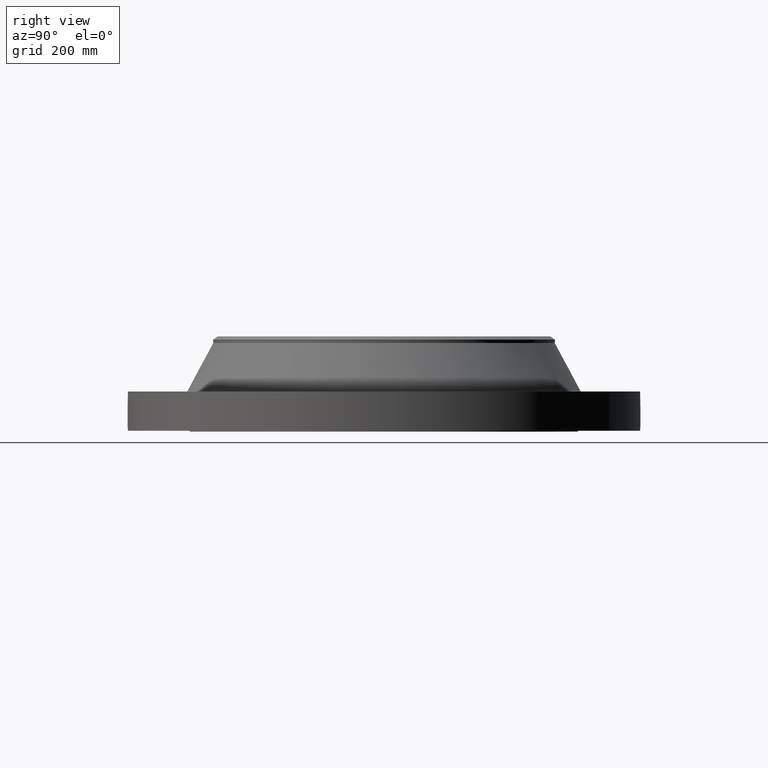
[diagram: clean part render]
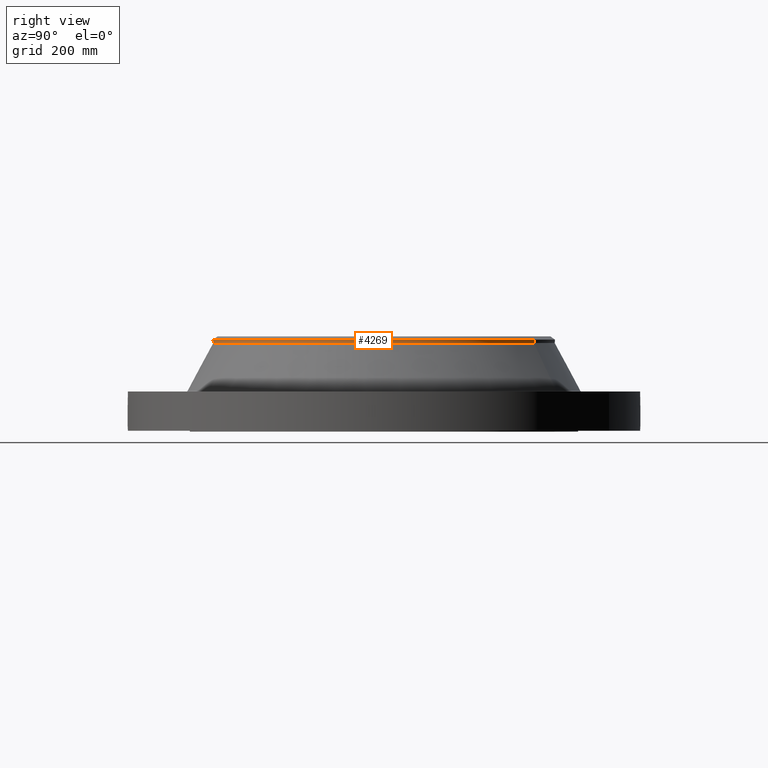
[diagram: same view with one face highlighted and labeled with its STEP entity id]
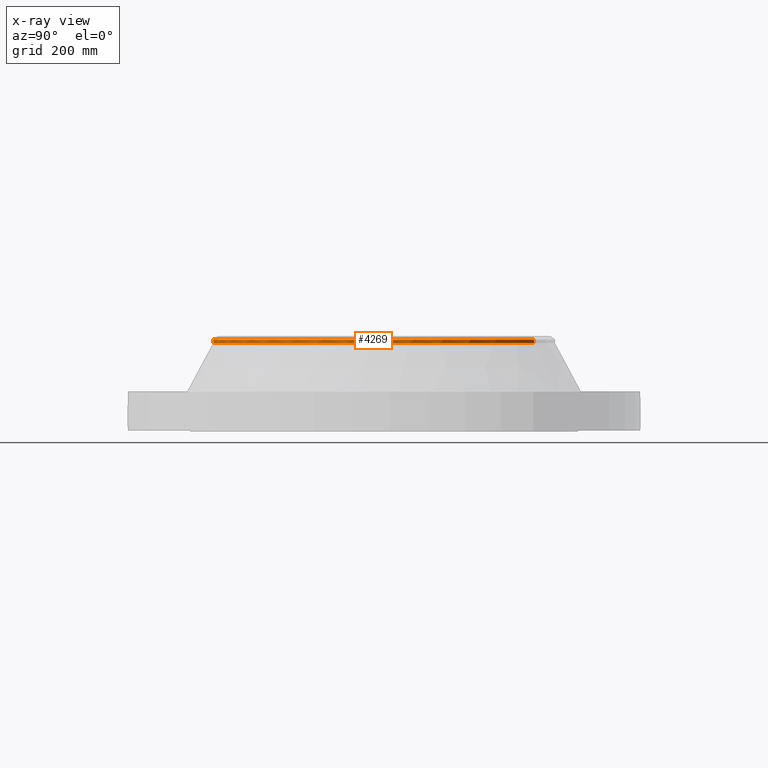
[diagram: x-ray of the same camera — body ghosted, the highlighted face saturated]
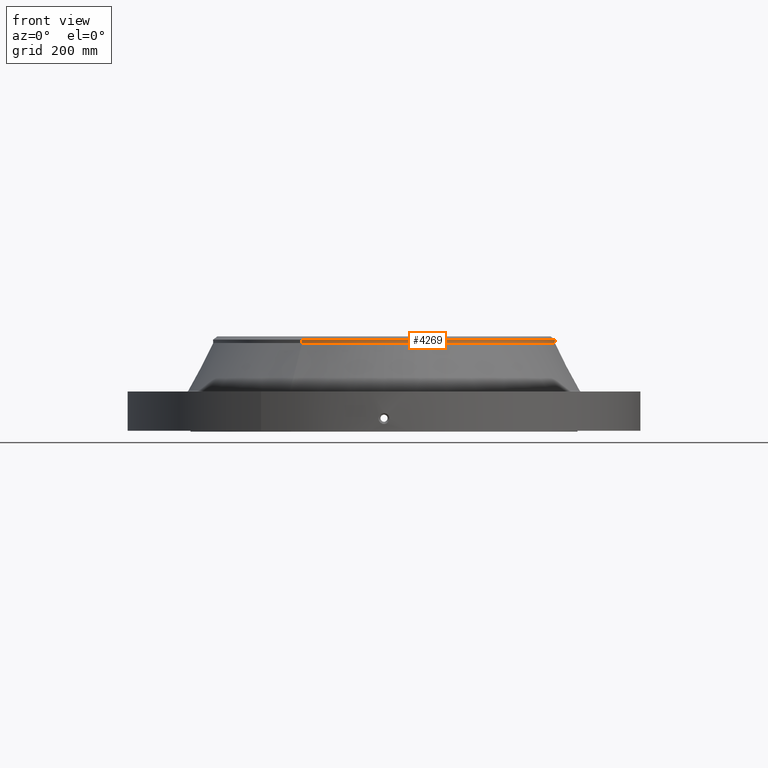
[diagram: same view with one face highlighted and labeled with its STEP entity id]
A machine part, right view. The second image highlights one B-rep face of the part: STEP entity #4269.
The next image is the same camera in x-ray: the body ghosted, the highlighted face saturated — about 0% of this face is hidden behind the body in this view.
A second angle (front view) of the same face is appended — the face is thin or edge-on in the first view.
In plain terms, the highlighted cylindrical surface (partial cylindrical patch) has radius 304.8 mm, axis along (0, 0, -1).
Its self-contained STEP definition (entity closure, byte-faithful):
#3437=AXIS2_PLACEMENT_3D('Circle Axis2P3D',#3435,#3436,$) ;
#4234=AXIS2_PLACEMENT_3D('Cylinder Axis2P3D',#4231,#4232,#4233) ;
#4252=AXIS2_PLACEMENT_3D('Circle Axis2P3D',#4250,#4251,$) ;
#4259=AXIS2_PLACEMENT_3D('Circle Axis2P3D',#4257,#4258,$) ;
#3432=CARTESIAN_POINT('Vertex',(5.75310646327,10.5309907427,6.21645135496)) ;
#3435=CARTESIAN_POINT('Axis2P3D Location',(0.,0.,6.21645135496)) ;
#3439=CARTESIAN_POINT('Vertex',(-5.75310646327,-10.5309907427,6.21645135496)) ;
#4231=CARTESIAN_POINT('Axis2P3D Location',(0.,0.,3.34000000001)) ;
#4236=CARTESIAN_POINT('Line Origine',(-5.75310646327,-10.5309907427,6.33456159119)) ;
#4240=CARTESIAN_POINT('Vertex',(-5.75310646327,-10.5309907427,6.45267182741)) ;
#4243=CARTESIAN_POINT('Line Origine',(5.75310646327,10.5309907427,6.33456159119)) ;
#4247=CARTESIAN_POINT('Vertex',(5.75310646327,10.5309907427,6.45267182741)) ;
#4250=CARTESIAN_POINT('Axis2P3D Location',(0.,0.,6.45267182741)) ;
#4254=CARTESIAN_POINT('Vertex',(5.75310646327,-10.5309907427,6.45267182741)) ;
#4257=CARTESIAN_POINT('Axis2P3D Location',(0.,0.,6.45267182741)) ;
#3436=DIRECTION('Axis2P3D Direction',(0.,0.,-0.0393700787402)) ;
#4232=DIRECTION('Axis2P3D Direction',(0.,0.,-0.0393700787402)) ;
#4233=DIRECTION('Axis2P3D XDirection',(-0.0188750212049,-0.0345504945626,0.)) ;
#4237=DIRECTION('Vector Direction',(0.,0.,-0.0393700787402)) ;
#4244=DIRECTION('Vector Direction',(0.,0.,-0.0393700787402)) ;
#4251=DIRECTION('Axis2P3D Direction',(0.,0.,-0.0393700787402)) ;
#4258=DIRECTION('Axis2P3D Direction',(0.,0.,-0.0393700787402)) ;
#4238=VECTOR('Line Direction',#4237,0.0393700787402) ;
#4245=VECTOR('Line Direction',#4244,0.0393700787402) ;
#4263=ORIENTED_EDGE('',*,*,#4242,.F.) ;
#4264=ORIENTED_EDGE('',*,*,#3441,.F.) ;
#4265=ORIENTED_EDGE('',*,*,#4249,.T.) ;
#4266=ORIENTED_EDGE('',*,*,#4256,.F.) ;
#4267=ORIENTED_EDGE('',*,*,#4261,.T.) ;
#4269=ADVANCED_FACE('PartBody',(#4268),#4235,.T.) ;
#3438=CIRCLE('generated circle',#3437,12.) ;
#4253=CIRCLE('generated circle',#4252,12.) ;
#4260=CIRCLE('generated circle',#4259,12.) ;
#4235=CYLINDRICAL_SURFACE('generated cylinder',#4234,12.) ;
#3441=EDGE_CURVE('',#3433,#3440,#3438,.T.) ;
#4242=EDGE_CURVE('',#3440,#4241,#4239,.F.) ;
#4249=EDGE_CURVE('',#3433,#4248,#4246,.F.) ;
#4256=EDGE_CURVE('',#4255,#4248,#4253,.F.) ;
#4261=EDGE_CURVE('',#4255,#4241,#4260,.T.) ;
#4262=EDGE_LOOP('',(#4263,#4264,#4265,#4266,#4267)) ;
#4268=FACE_OUTER_BOUND('',#4262,.T.) ;
#4239=LINE('Line',#4236,#4238) ;
#4246=LINE('Line',#4243,#4245) ;
#3433=VERTEX_POINT('',#3432) ;
#3440=VERTEX_POINT('',#3439) ;
#4241=VERTEX_POINT('',#4240) ;
#4248=VERTEX_POINT('',#4247) ;
#4255=VERTEX_POINT('',#4254) ;